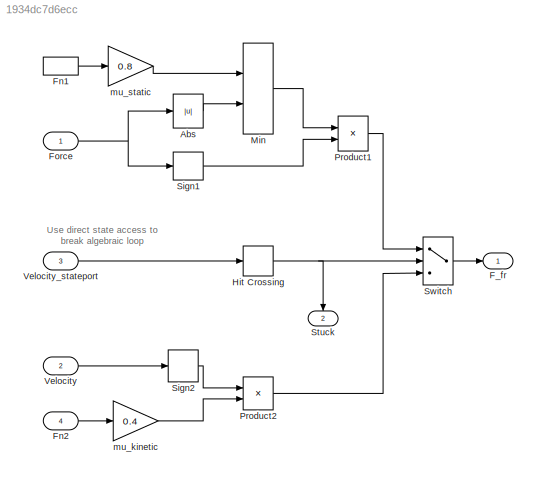
MODEL slx_1934dc7d6ecc
KIND model
CONFIG AbsTol = auto
CONFIG EnableMultiTasking = off
CONFIG FixedStep = 1.000000
CONFIG MaxStep = auto
CONFIG MinStep = auto
CONFIG RelTol = 1e-3
CONFIG SampleTimeConstraint = Unconstrained
CONFIG Solver = FixedStepAuto
CONFIG SolverName = FixedStepAuto
CONFIG StartTime = 0.0
CONFIG StopTime = 10.0
BLOCK [Abs] Abs
BLOCK [Outport] F_fr
  IconDisplay = Port number
  InitialOutput = 0
BLOCK [InportShadow] Fn1
  IconDisplay = Port number
  Port = 4
BLOCK [Inport] Fn2
  IconDisplay = Port number
  Port = 4
BLOCK [Inport] Force
  IconDisplay = Port number
BLOCK [HitCross] Hit Crossing
  Ports = [1, 1]
BLOCK [MinMax] Min
  Inputs = 2
  Ports = [2, 1]
BLOCK [Product] Product1
  Ports = [2, 1]
  RndMeth = Floor
BLOCK [Product] Product2
  Ports = [2, 1]
  RndMeth = Floor
BLOCK [Signum] Sign1
BLOCK [Signum] Sign2
BLOCK [Outport] Stuck
  IconDisplay = Port number
  InitialOutput = 0
  Port = 2
BLOCK [Switch] Switch
  Criteria = u2 ~= 0
  SaturateOnIntegerOverflow = off
  Threshold = 0.5
BLOCK [Inport] Velocity
  IconDisplay = Port number
  Port = 2
BLOCK [Inport] Velocity_stateport
  IconDisplay = Port number
  Port = 3
BLOCK [Gain] mu_kinetic
  Gain = 0.4
  OutDataTypeStr = Inherit: Inherit via internal rule
  ParamDataTypeStr = Inherit: Inherit via internal rule
  SaturateOnIntegerOverflow = off
BLOCK [Gain] mu_static
  Gain = 0.8
  OutDataTypeStr = Inherit: Inherit via internal rule
  ParamDataTypeStr = Inherit: Inherit via internal rule
  SaturateOnIntegerOverflow = off
ANNOTATION (root): Use direct state access to break algebraic loop
LINE Abs:1 -> Min:2
LINE Fn1:1 -> mu_static:1
LINE Fn2:1 -> mu_kinetic:1
NET Force:1 -> Abs:1, Sign1:1
NET Hit Crossing:1 -> Stuck:1, Switch:2
LINE Min:1 -> Product1:1
LINE Product1:1 -> Switch:1
LINE Product2:1 -> Switch:3
LINE Sign1:1 -> Product1:2
LINE Sign2:1 -> Product2:1
LINE Switch:1 -> F_fr:1
LINE Velocity:1 -> Sign2:1
LINE Velocity_stateport:1 -> Hit Crossing:1
LINE mu_kinetic:1 -> Product2:2
LINE mu_static:1 -> Min:1
note: NET lines group one-source signal fan-out (src -> all destinations, sorted); 1:1 wires keep LINE
